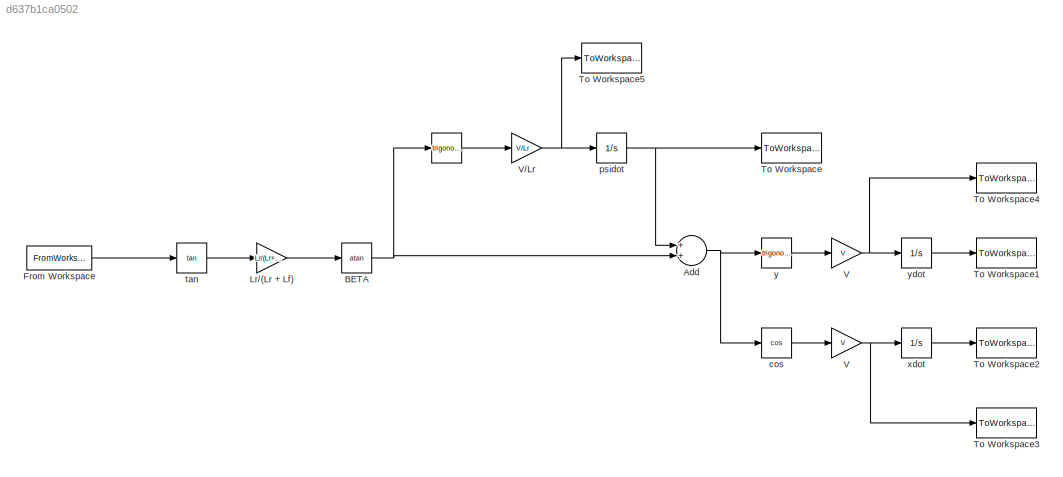
MODEL slx_d637b1ca0502
KIND model
CONFIG AbsTol = auto
CONFIG FixedStep = auto
CONFIG MaxStep = 0.01
CONFIG MinStep = auto
CONFIG RelTol = 1e-3
CONFIG SampleTimeConstraint = Unconstrained
CONFIG Solver = VariableStepAuto
CONFIG SolverMode = Auto
CONFIG SolverName = VariableStepAuto
CONFIG StartTime = 0.0
CONFIG StopTime = 10.0
BLOCK [Trigonometry]  
  OutputSignalType = real
  Ports = [1, 1]
BLOCK [Sum] Add
  InputSameDT = off
  OutDataTypeStr = Inherit: Inherit via internal rule
  Ports = [2, 1]
  SaturateOnIntegerOverflow = off
BLOCK [Trigonometry] BETA
  Operator = atan
  OutputSignalType = real
  Ports = [1, 1]
BLOCK [FromWorkspace] From Workspace
  SampleTime = 0
  VariableName = delta
  ZeroCross = on
BLOCK [Gain] Lr//(Lr + Lf)
  Gain = Lr/(Lr+Lf)
  OutDataTypeStr = Inherit: Inherit via internal rule
  ParamDataTypeStr = Inherit: Inherit via internal rule
  SaturateOnIntegerOverflow = off
BLOCK [ToWorkspace] To Workspace
  FixptAsFi = on
  MaxDataPoints = inf
  Ports = [1]
  SampleTime = -1
  Save2DSignal = 3-D array (concatenate along third dimension)
  SaveFormat = Structure With Time
  VariableName = Psi
BLOCK [ToWorkspace] To Workspace1
  FixptAsFi = on
  MaxDataPoints = inf
  Ports = [1]
  SampleTime = -1
  Save2DSignal = 3-D array (concatenate along third dimension)
  SaveFormat = Structure With Time
  VariableName = Y
BLOCK [ToWorkspace] To Workspace2
  FixptAsFi = on
  MaxDataPoints = inf
  Ports = [1]
  SampleTime = -1
  Save2DSignal = 3-D array (concatenate along third dimension)
  SaveFormat = Structure With Time
  VariableName = X
BLOCK [ToWorkspace] To Workspace3
  FixptAsFi = on
  MaxDataPoints = inf
  Ports = [1]
  SampleTime = -1
  Save2DSignal = 3-D array (concatenate along third dimension)
  SaveFormat = Structure With Time
  VariableName = XDot
BLOCK [ToWorkspace] To Workspace4
  FixptAsFi = on
  MaxDataPoints = inf
  Ports = [1]
  SampleTime = -1
  Save2DSignal = 3-D array (concatenate along third dimension)
  SaveFormat = Structure With Time
  VariableName = YDot
BLOCK [ToWorkspace] To Workspace5
  FixptAsFi = on
  MaxDataPoints = inf
  Ports = [1]
  SampleTime = -1
  Save2DSignal = 3-D array (concatenate along third dimension)
  SaveFormat = Structure With Time
  VariableName = PsiDot
BLOCK [Gain] V
  Gain = V
  OutDataTypeStr = Inherit: Inherit via internal rule
  ParamDataTypeStr = Inherit: Inherit via internal rule
  SaturateOnIntegerOverflow = off
BLOCK [Gain] V 
  Gain = V
  OutDataTypeStr = Inherit: Inherit via internal rule
  ParamDataTypeStr = Inherit: Inherit via internal rule
  SaturateOnIntegerOverflow = off
BLOCK [Gain] V//Lr
  Gain = V/Lr
  OutDataTypeStr = Inherit: Inherit via internal rule
  ParamDataTypeStr = Inherit: Inherit via internal rule
  SaturateOnIntegerOverflow = off
BLOCK [Trigonometry] cos
  Operator = cos
  OutputSignalType = real
  Ports = [1, 1]
BLOCK [Integrator] psidot
  InitialCondition = Psi0
  Ports = [1, 1]
BLOCK [Trigonometry] tan 
  Operator = tan
  OutputSignalType = real
  Ports = [1, 1]
BLOCK [Integrator] xdot
  InitialCondition = X0
  Ports = [1, 1]
BLOCK [Trigonometry] y
  OutputSignalType = real
  Ports = [1, 1]
BLOCK [Integrator] ydot
  InitialCondition = Y0
  Ports = [1, 1]
LINE  :1 -> V//Lr:1
NET Add:1 -> cos:1, y:1
NET BETA:1 ->  :1, Add:2
LINE From Workspace:1 -> tan :1
LINE Lr//(Lr + Lf):1 -> BETA:1
NET V :1 -> To Workspace3:1, xdot:1
NET V//Lr:1 -> To Workspace5:1, psidot:1
NET V:1 -> To Workspace4:1, ydot:1
LINE cos:1 -> V :1
NET psidot:1 -> Add:1, To Workspace:1
LINE tan :1 -> Lr//(Lr + Lf):1
LINE xdot:1 -> To Workspace2:1
LINE y:1 -> V:1
LINE ydot:1 -> To Workspace1:1
note: NET lines group one-source signal fan-out (src -> all destinations, sorted); 1:1 wires keep LINE
